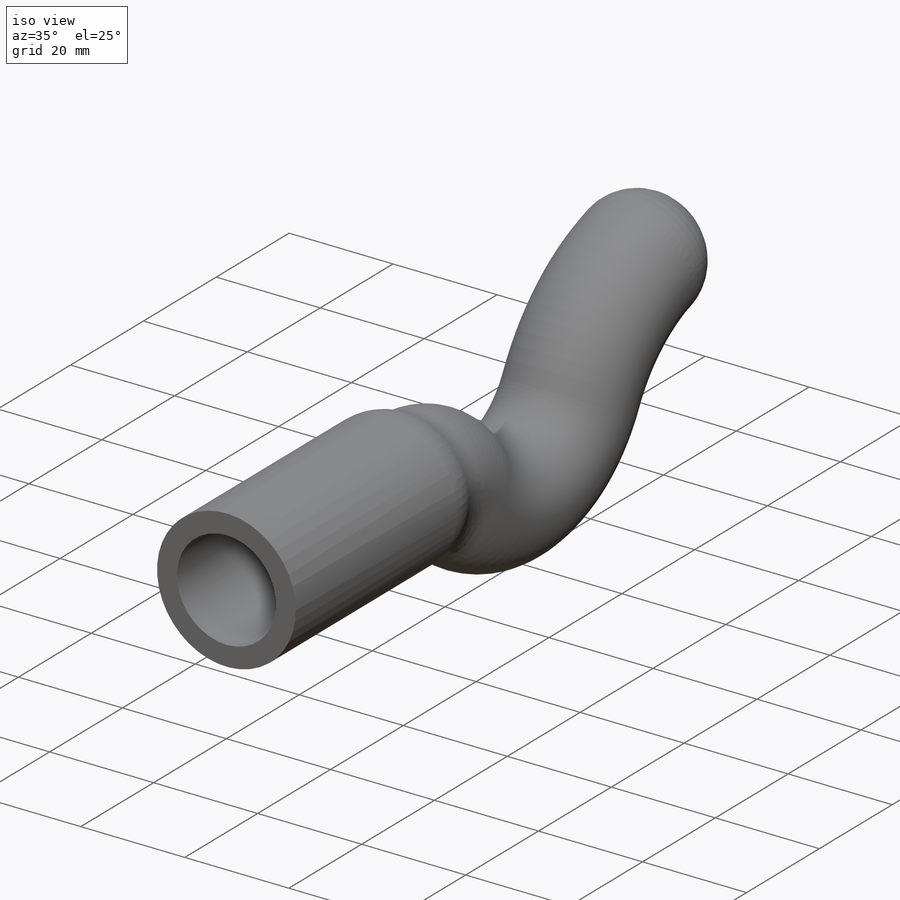
[diagram: iso view]
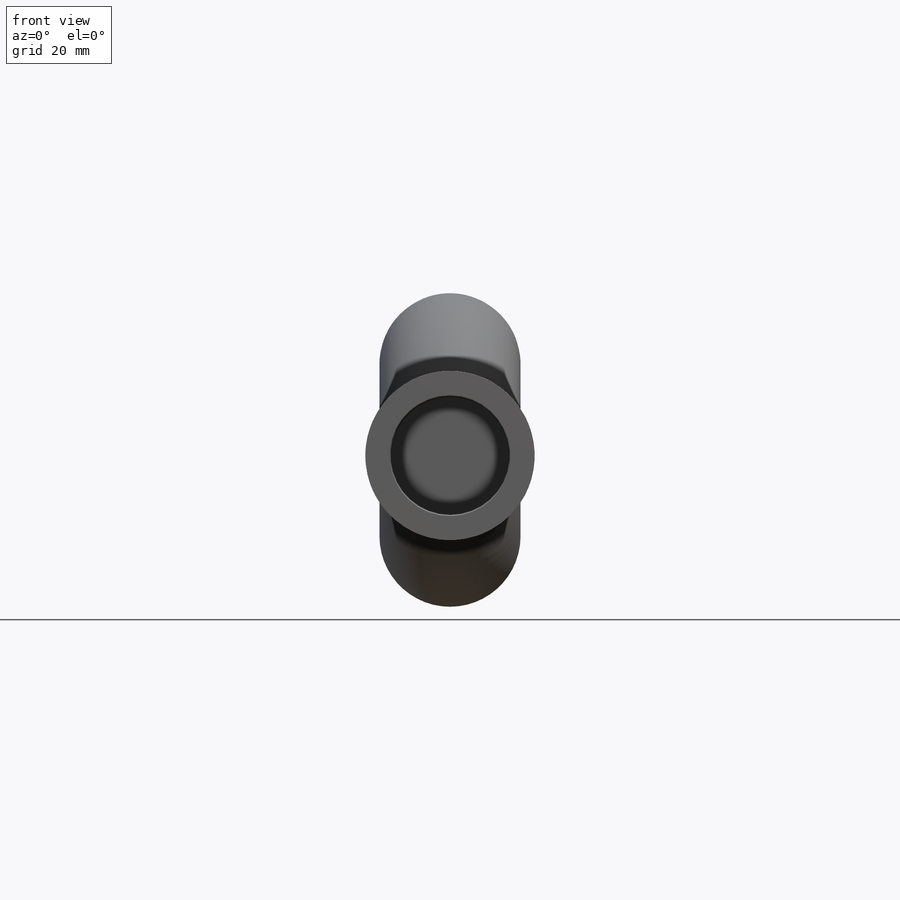
[diagram: front view]
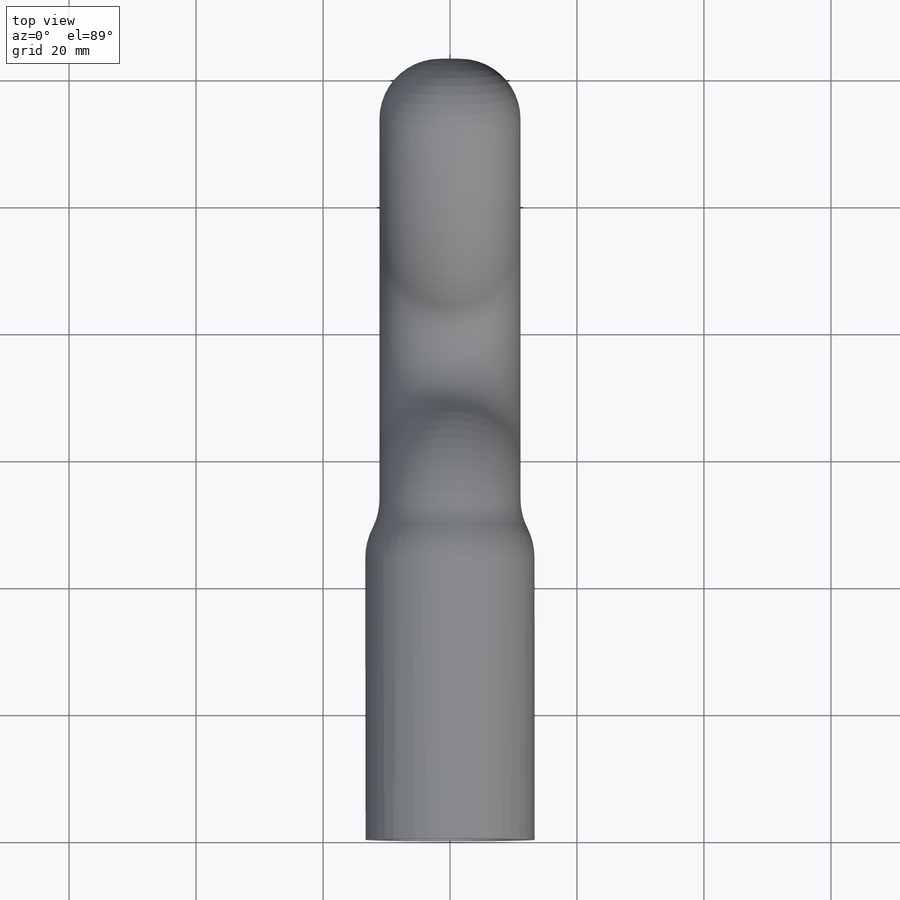
[diagram: top view]
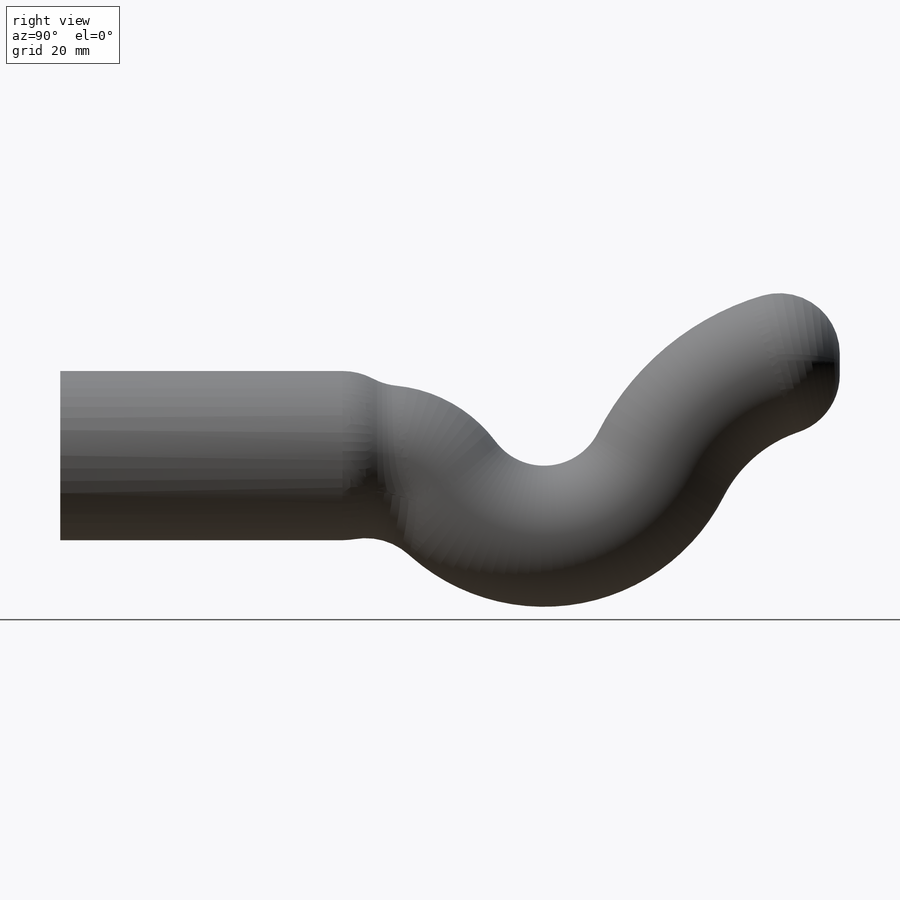
[diagram: right view]
SOLIDWORKS PART (.sldprt)
format: sldprt  version: not decoded by parser v0  size: 362,496 bytes
history: native  units: mm
features: sketch x4, fillet x3, material x1, sweep x1, extrude x1, cut_revolve x1 (+11 scaffold rows collapsed)
feature tree (22):
  scaffold x11  (default folders/planes/origin — collapsed)
  material  "Material <not specified>"
  sketch  "Sketch1"  dims[D1=22.225mm]
  sketch  "Sketch3"  dims[D3=9.525mm D5=22.225mm D1=12.7mm D2=50.8mm D4=15.875mm D6=38.1mm]
  sweep  "Sweep1"
  fillet  "Fillet1"  Radius=9.525mm
  sketch  "Sketch4"  dims[D1=26.67mm]
  extrude  "Boss-Extrude1"  Depth=50.8mm
  fillet  "Fillet5"  Radius=10.16mm
  fillet  "Fillet6"  Radius=10.16mm
  sketch  "Sketch5"  dims[D1=18.542mm D2=44.45mm D3=9.525mm]
  cut_revolve  "Cut-Revolve1"  Angle=360deg
decode coverage: 9 of 10 modeling features carry decoded parameters
note: suppression state not decoded; provenance and decode notes live in map.json
